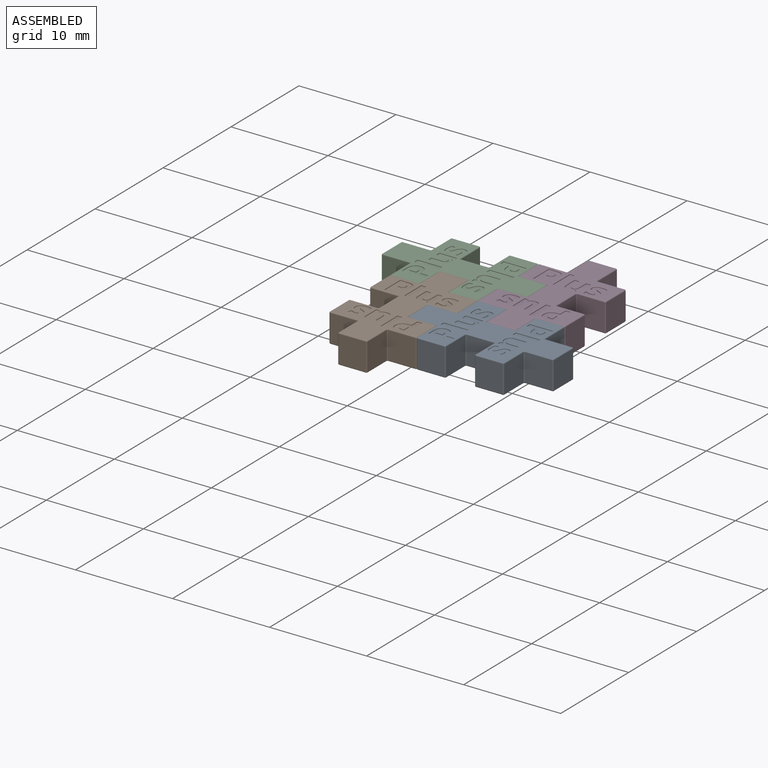
[diagram: assembled view]
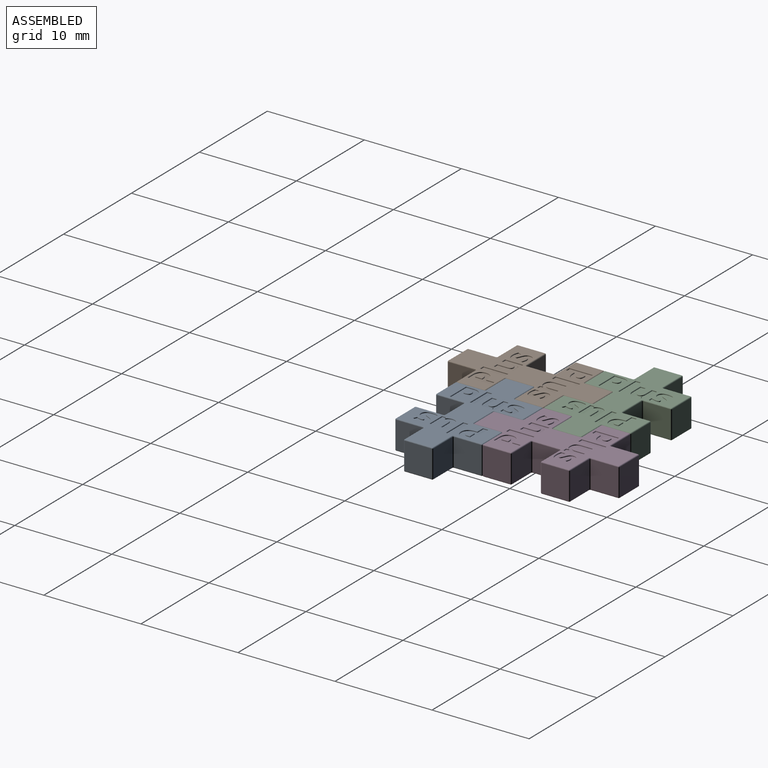
[diagram: assembled view, second angle]
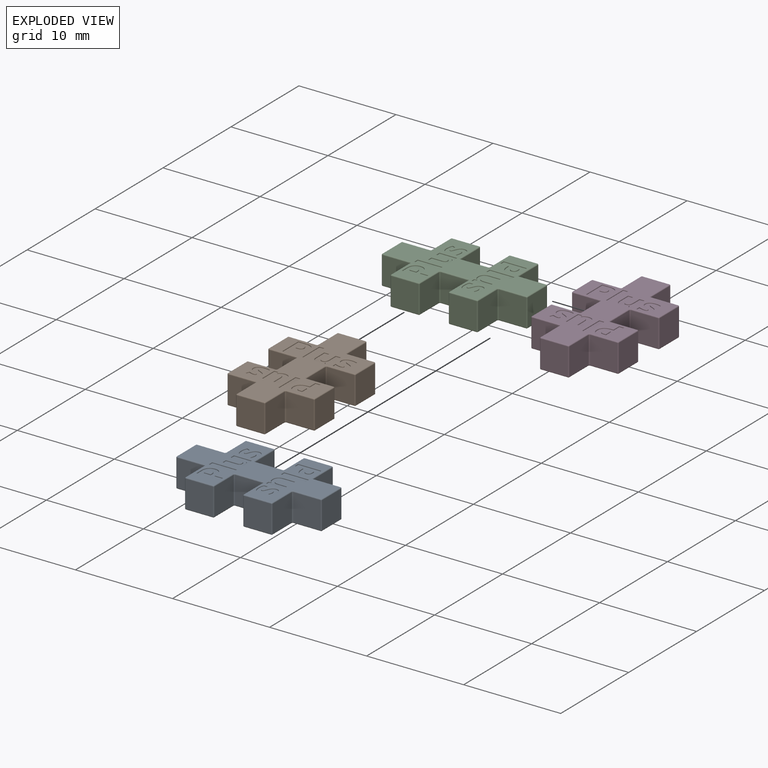
[diagram: exploded view]
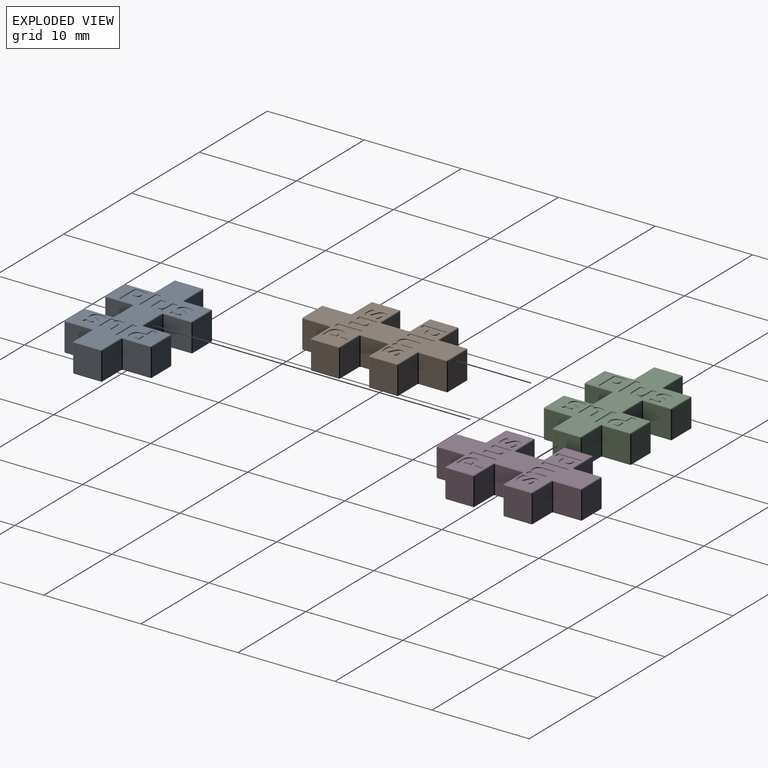
[diagram: exploded view, second angle]
ASSEMBLY  parts=4 mates=3
PART A: 383 faces, bbox 15x9x3 mm
  f0: plane 14.8x8.8mm, normal (0,0,1), area 56.6mm2, adj f1,f96,f97,f98,f99,f100,f101,f102
  f1: torus R=0.2mm, axis (0,0,1), area 0mm2, adj f0,f2,f96,f122
  f2: cylinder r=0.1mm len=2.8mm, axis (0,0,1), area 0.4mm2, adj f1,f3,f94,f95
  f3: plane 2.8x2.8mm, normal (0,1,0), area 7.8mm2, adj f2,f4,f92,f96
  f4: cylinder r=0.1mm len=2.8mm, axis (-1,0,0), area 0.4mm2, adj f3,f5,f91,f94
  f5: plane 14.8x8.8mm, normal (0,0,-1), area 75.1mm2, adj f4,f6,f65,f66,f67,f68,f69,f70
  f6: cylinder r=0.1mm len=2.8mm, axis (-1,0,0), area 0.4mm2, adj f5,f7,f64,f90
  f7: plane 2.8x2.8mm, normal (0,1,0), area 7.8mm2, adj f6,f8,f43,f112
  f8: cylinder r=0.1mm len=2.8mm, axis (0,0,-1), area 0.4mm2, adj f7,f9,f42,f64
  f9: plane 2.8x2.8mm, normal (-1,0,0), area 7.8mm2, adj f8,f10,f65,f111
  f10: cylinder r=0.1mm len=2.8mm, axis (0,0,-1), area 0.4mm2, adj f9,f11,f40,f41
  f11: plane 2.8x2.8mm, normal (0,-1,0), area 7.8mm2, adj f10,f12,f66,f110
  f12: cylinder r=0.1mm len=2.8mm, axis (0,0,1), area 0.4mm2, adj f11,f13,f67,f109
  f13: plane 2.8x2.8mm, normal (-1,0,0), area 7.8mm2, adj f12,f14,f68,f108
  f14: cylinder r=0.1mm len=2.8mm, axis (0,0,-1), area 0.4mm2, adj f13,f15,f16,f39
  f15: sphere r=0.1mm, area 0mm2, adj f14,f107,f108
  f16: plane 2.8x2.8mm, normal (0,-1,0), area 7.8mm2, adj f14,f17,f69,f107
  f17: cylinder r=0.1mm len=2.8mm, axis (0,0,-1), area 0.4mm2, adj f16,f18,f19,f38
  f18: sphere r=0.1mm, area 0mm2, adj f17,f106,f107
  f19: plane 2.8x2.8mm, normal (1,0,0), area 7.8mm2, adj f17,f20,f70,f106
  f20: cylinder r=0.1mm len=2.8mm, axis (0,0,1), area 0.4mm2, adj f19,f21,f71,f105
  f21: plane 2.8x2.8mm, normal (0,-1,0), area 7.8mm2, adj f20,f22,f72,f104
  f22: cylinder r=0.1mm len=2.8mm, axis (0,0,1), area 0.4mm2, adj f21,f23,f73,f103
  f23: plane 2.8x2.8mm, normal (-1,0,0), area 7.8mm2, adj f22,f24,f74,f102
  f24: cylinder r=0.1mm len=2.8mm, axis (0,0,-1), area 0.4mm2, adj f23,f25,f26,f37
  f25: sphere r=0.1mm, area 0mm2, adj f24,f101,f102
  f26: plane 2.8x2.8mm, normal (0,-1,0), area 7.8mm2, adj f24,f27,f75,f101
  f27: cylinder r=0.1mm len=2.8mm, axis (0,0,-1), area 0.4mm2, adj f26,f28,f29,f36
  f28: sphere r=0.1mm, area 0mm2, adj f27,f100,f101
  f29: plane 2.8x2.8mm, normal (1,0,0), area 7.8mm2, adj f27,f30,f76,f100
  f30: cylinder r=0.1mm len=2.8mm, axis (0,0,1), area 0.4mm2, adj f29,f31,f77,f99
  f31: plane 2.8x2.8mm, normal (0,-1,0), area 7.8mm2, adj f30,f32,f78,f98
  f32: cylinder r=0.1mm len=2.8mm, axis (0,0,-1), area 0.4mm2, adj f31,f33,f34,f35
  f33: sphere r=0.1mm, area 0mm2, adj f32,f97,f98
  f34: plane 2.8x2.8mm, normal (1,0,0), area 7.8mm2, adj f32,f79,f92,f97
  f35: sphere r=0.1mm, area 0mm2, adj f32,f78,f79
  f36: sphere r=0.1mm, area 0mm2, adj f27,f75,f76
  f37: sphere r=0.1mm, area 0mm2, adj f24,f74,f75
  f38: sphere r=0.1mm, area 0mm2, adj f17,f69,f70
  f39: sphere r=0.1mm, area 0mm2, adj f14,f68,f69
  f40: sphere r=0.1mm, area 0mm2, adj f10,f65,f66
  f41: sphere r=0.1mm, area 0mm2, adj f10,f110,f111
  f42: sphere r=0.1mm, area 0mm2, adj f8,f111,f112
  f43: cylinder r=0.1mm len=2.8mm, axis (0,0,1), area 0.4mm2, adj f7,f44,f90,f113
  f44: plane 2.8x2.8mm, normal (-1,0,0), area 7.8mm2, adj f43,f45,f89,f114
  f45: cylinder r=0.1mm len=2.8mm, axis (0,0,-1), area 0.4mm2, adj f44,f46,f47,f63
  f46: sphere r=0.1mm, area 0mm2, adj f45,f88,f89
  f47: plane 2.8x2.8mm, normal (0,1,0), area 7.8mm2, adj f45,f48,f88,f115
  f48: cylinder r=0.1mm len=2.8mm, axis (0,0,-1), area 0.4mm2, adj f47,f49,f50,f62
  f49: sphere r=0.1mm, area 0mm2, adj f48,f86,f88
  f50: plane 2.8x2.8mm, normal (1,0,0), area 7.8mm2, adj f48,f51,f86,f116
  f51: cylinder r=0.1mm len=2.8mm, axis (0,0,1), area 0.4mm2, adj f50,f52,f85,f117
  f52: plane 2.8x2.8mm, normal (0,1,0), area 7.8mm2, adj f51,f53,f84,f118
  f53: cylinder r=0.1mm len=2.8mm, axis (0,0,1), area 0.4mm2, adj f52,f54,f83,f119
  f54: plane 2.8x2.8mm, normal (-1,0,0), area 7.8mm2, adj f53,f55,f82,f120
  f55: cylinder r=0.1mm len=2.8mm, axis (0,0,-1), area 0.4mm2, adj f54,f56,f57,f61
  f56: sphere r=0.1mm, area 0mm2, adj f55,f81,f82
  f57: plane 2.8x2.8mm, normal (0,1,0), area 7.8mm2, adj f55,f58,f81,f121
  f58: cylinder r=0.1mm len=2.8mm, axis (0,0,-1), area 0.4mm2, adj f57,f59,f60,f95
  f59: sphere r=0.1mm, area 0mm2, adj f58,f80,f81
  f60: sphere r=0.1mm, area 0mm2, adj f58,f121,f122
  f61: sphere r=0.1mm, area 0mm2, adj f55,f120,f121
  f62: sphere r=0.1mm, area 0mm2, adj f48,f115,f116
  f63: sphere r=0.1mm, area 0mm2, adj f45,f114,f115
  f64: sphere r=0.1mm, area 0mm2, adj f6,f8,f65
  f65: cylinder r=0.1mm len=2.8mm, axis (0,-1,0), area 0.4mm2, adj f5,f9,f40,f64
  f66: cylinder r=0.1mm len=2.8mm, axis (1,0,0), area 0.4mm2, adj f5,f11,f40,f67
  f67: torus R=0.2mm, axis (0,0,1), area 0mm2, adj f5,f12,f66,f68
  f68: cylinder r=0.1mm len=2.8mm, axis (0,-1,0), area 0.4mm2, adj f5,f13,f39,f67
  f69: cylinder r=0.1mm len=2.8mm, axis (1,0,0), area 0.4mm2, adj f5,f16,f38,f39
  f70: cylinder r=0.1mm len=2.8mm, axis (0,1,0), area 0.4mm2, adj f5,f19,f38,f71
  f71: torus R=0.2mm, axis (0,0,1), area 0mm2, adj f5,f20,f70,f72
  f72: cylinder r=0.1mm len=2.8mm, axis (1,0,0), area 0.4mm2, adj f5,f21,f71,f73
  f73: torus R=0.2mm, axis (0,0,1), area 0mm2, adj f5,f22,f72,f74
  f74: cylinder r=0.1mm len=2.8mm, axis (0,-1,0), area 0.4mm2, adj f5,f23,f37,f73
  f75: cylinder r=0.1mm len=2.8mm, axis (1,0,0), area 0.4mm2, adj f5,f26,f36,f37
  f76: cylinder r=0.1mm len=2.8mm, axis (0,1,0), area 0.4mm2, adj f5,f29,f36,f77
  f77: torus R=0.2mm, axis (0,0,1), area 0mm2, adj f5,f30,f76,f78
  f78: cylinder r=0.1mm len=2.8mm, axis (1,0,0), area 0.4mm2, adj f5,f31,f35,f77
  f79: cylinder r=0.1mm len=2.8mm, axis (0,1,0), area 0.4mm2, adj f5,f34,f35,f91
  f80: cylinder r=0.1mm len=2.8mm, axis (0,1,0), area 0.4mm2, adj f5,f59,f94,f95
  f81: cylinder r=0.1mm len=2.8mm, axis (-1,0,0), area 0.4mm2, adj f5,f56,f57,f59
  f82: cylinder r=0.1mm len=2.8mm, axis (0,-1,0), area 0.4mm2, adj f5,f54,f56,f83
  f83: torus R=0.2mm, axis (0,0,1), area 0mm2, adj f5,f53,f82,f84
  f84: cylinder r=0.1mm len=2.8mm, axis (-1,0,0), area 0.4mm2, adj f5,f52,f83,f85
  f85: torus R=0.2mm, axis (0,0,1), area 0mm2, adj f5,f51,f84,f86
  f86: cylinder r=0.1mm len=2.8mm, axis (0,1,0), area 0.4mm2, adj f5,f49,f50,f85,f87
  f87: sphere r=0.1mm, area 0mm2, adj f86,f88
  f88: cylinder r=0.1mm len=2.8mm, axis (-1,0,0), area 0.4mm2, adj f5,f46,f47,f49,f87
  f89: cylinder r=0.1mm len=2.8mm, axis (0,-1,0), area 0.4mm2, adj f5,f44,f46,f90
  f90: torus R=0.2mm, axis (0,0,1), area 0mm2, adj f5,f6,f43,f89
  f91: sphere r=0.1mm, area 0mm2, adj f4,f79,f92
  f92: cylinder r=0.1mm len=2.8mm, axis (0,0,-1), area 0.4mm2, adj f3,f34,f91,f93
  f93: sphere r=0.1mm, area 0mm2, adj f92,f96,f97
  f94: torus R=0.2mm, axis (0,0,1), area 0mm2, adj f2,f4,f5,f80
  f95: plane 2.8x2.8mm, normal (1,0,0), area 7.8mm2, adj f2,f58,f80,f122
  f96: cylinder r=0.1mm len=2.8mm, axis (1,0,0), area 0.4mm2, adj f0,f1,f3,f93
  f97: cylinder r=0.1mm len=2.8mm, axis (0,-1,0), area 0.4mm2, adj f0,f33,f34,f93
  f98: cylinder r=0.1mm len=2.8mm, axis (-1,0,0), area 0.4mm2, adj f0,f31,f33,f99
  f99: torus R=0.2mm, axis (0,0,1), area 0mm2, adj f0,f30,f98,f100
  f100: cylinder r=0.1mm len=2.8mm, axis (0,-1,0), area 0.4mm2, adj f0,f28,f29,f99
  f101: cylinder r=0.1mm len=2.8mm, axis (-1,0,0), area 0.4mm2, adj f0,f25,f26,f28
  f102: cylinder r=0.1mm len=2.8mm, axis (0,1,0), area 0.4mm2, adj f0,f23,f25,f103
  f103: torus R=0.2mm, axis (0,0,1), area 0mm2, adj f0,f22,f102,f104
  f104: cylinder r=0.1mm len=2.8mm, axis (-1,0,0), area 0.4mm2, adj f0,f21,f103,f105
  f105: torus R=0.2mm, axis (0,0,1), area 0mm2, adj f0,f20,f104,f106
  f106: cylinder r=0.1mm len=2.8mm, axis (0,-1,0), area 0.4mm2, adj f0,f18,f19,f105
  f107: cylinder r=0.1mm len=2.8mm, axis (-1,0,0), area 0.4mm2, adj f0,f15,f16,f18
  f108: cylinder r=0.1mm len=2.8mm, axis (0,1,0), area 0.4mm2, adj f0,f13,f15,f109
  f109: torus R=0.2mm, axis (0,0,1), area 0mm2, adj f0,f12,f108,f110
  f110: cylinder r=0.1mm len=2.8mm, axis (-1,0,0), area 0.4mm2, adj f0,f11,f41,f109
  f111: cylinder r=0.1mm len=2.8mm, axis (0,1,0), area 0.4mm2, adj f0,f9,f41,f42
  f112: cylinder r=0.1mm len=2.8mm, axis (1,0,0), area 0.4mm2, adj f0,f7,f42,f113
  f113: torus R=0.2mm, axis (0,0,1), area 0mm2, adj f0,f43,f112,f114
  f114: cylinder r=0.1mm len=2.8mm, axis (0,1,0), area 0.4mm2, adj f0,f44,f63,f113
  f115: cylinder r=0.1mm len=2.8mm, axis (1,0,0), area 0.4mm2, adj f0,f47,f62,f63
  f116: cylinder r=0.1mm len=2.8mm, axis (0,-1,0), area 0.4mm2, adj f0,f50,f62,f117
  f117: torus R=0.2mm, axis (0,0,1), area 0mm2, adj f0,f51,f116,f118
  f118: cylinder r=0.1mm len=2.8mm, axis (1,0,0), area 0.4mm2, adj f0,f52,f117,f119
  f119: torus R=0.2mm, axis (0,0,1), area 0mm2, adj f0,f53,f118,f120
  f120: cylinder r=0.1mm len=2.8mm, axis (0,1,0), area 0.4mm2, adj f0,f54,f61,f119
  f121: cylinder r=0.1mm len=2.8mm, axis (1,0,0), area 0.4mm2, adj f0,f57,f60,f61
  f122: cylinder r=0.1mm len=2.8mm, axis (0,-1,0), area 0.4mm2, adj f0,f1,f60,f95
  f123: cylinder r=0.05mm len=0.6mm, axis (0,-1,0), area 0mm2, adj f0,f124,f129,f131
  f124: plane 0.5x0.05mm, normal (1,0,0), area 0mm2, adj f123,f125,f127,f128
  f125: plane 2.53x0.5mm, normal (0,0,1), area 1.3mm2, adj f124,f126,f127,f128
  f126: plane 0.5x0.05mm, normal (-1,0,0), area 0mm2, adj f125,f127,f128,f130
  f127: plane 2.53x0.05mm, normal (0,1,0), area 0.1mm2, adj f124,f125,f126,f129
  f128: plane 2.53x0.05mm, normal (0,-1,0), area 0.1mm2, adj f124,f125,f126,f131
  f129: cylinder r=0.05mm len=2.63mm, axis (1,0,0), area 0.2mm2, adj f0,f123,f127,f130
  f130: cylinder r=0.05mm len=0.6mm, axis (0,1,0), area 0mm2, adj f0,f126,f129,f131
  f131: cylinder r=0.05mm len=2.63mm, axis (-1,0,0), area 0.2mm2, adj f0,f123,f128,f130
  f132: bspline ~0.3x0.14mm, area 0mm2, adj f0,f133,f151,f165
  f133: extruded ~0.22x0.1mm, area 0mm2, adj f132,f134,f149,f150
  f134: extruded ~0.3x0.14mm, area 0mm2, adj f133,f135,f150,f165
  f135: extruded ~0.46x0.09mm, area 0mm2, adj f134,f136,f150,f164
  f136: plane 0.86x0.05mm, normal (0,1,0), area 0mm2, adj f135,f137,f150,f163
  f137: plane 0.5x0.05mm, normal (1,0,0), area 0mm2, adj f136,f138,f150,f162
  f138: plane 1.82x0.05mm, normal (0,-1,0), area 0.1mm2, adj f137,f139,f150,f161
  f139: plane 0.38x0.05mm, normal (-1,0,0), area 0mm2, adj f138,f140,f150,f160
  f140: plane 0.23x0.07mm, normal (-0.28,0.96,0), area 0mm2, adj f139,f141,f150,f159
  f141: plane 0.09x0.03mm, normal (-1,0,0), area 0mm2, adj f140,f142,f150,f158,f159
  f142: extruded ~0.23x0.2mm, area 0mm2, adj f141,f143,f150,f158
  f143: extruded ~0.33x0.07mm, area 0mm2, adj f142,f144,f150,f157
  f144: extruded ~0.48x0.17mm, area 0mm2, adj f143,f145,f150,f156
  f145: extruded ~0.49x0.16mm, area 0mm2, adj f144,f146,f150,f155
  f146: plane 1.19x0.05mm, normal (0,1,0), area 0.1mm2, adj f145,f147,f150,f154
  f147: plane 0.5x0.05mm, normal (1,0,0), area 0mm2, adj f146,f148,f150,f153
  f148: plane 1.06x0.05mm, normal (0,-1,0), area 0.1mm2, adj f147,f149,f150,f152
  f149: extruded ~0.3x0.07mm, area 0mm2, adj f133,f148,f150,f151
  f150: plane 1.85x1.68mm, normal (0,0,1), area 2mm2, adj f133,f134,f135,f136,f137,f138,f139,f140
  f151: bspline ~0.37x0.15mm, area 0mm2, adj f0,f132,f149,f152
  f152: cylinder r=0.05mm len=1.11mm, axis (-1,0,0), area 0.1mm2, adj f0,f148,f151,f153
  f153: cylinder r=0.05mm len=0.6mm, axis (0,-1,0), area 0mm2, adj f0,f147,f152,f154
  f154: cylinder r=0.05mm len=1.24mm, axis (1,0,0), area 0.1mm2, adj f0,f146,f153,f155
  f155: bspline ~0.75x0.23mm, area 0mm2, adj f0,f145,f154,f156
  f156: bspline ~0.63x0.29mm, area 0mm2, adj f0,f144,f155,f157
  f157: bspline ~0.44x0.13mm, area 0mm2, adj f0,f143,f156,f158
  f158: bspline ~0.38x0.34mm, area 0mm2, adj f0,f141,f142,f157,f159
  f159: cylinder r=0.05mm len=0.29mm, axis (0.96,0.28,0), area 0mm2, adj f0,f140,f141,f158,f160
  f160: cylinder r=0.05mm len=0.47mm, axis (0,1,0), area 0mm2, adj f0,f139,f159,f161
  f161: cylinder r=0.05mm len=1.92mm, axis (-1,0,0), area 0.1mm2, adj f0,f138,f160,f162
  f162: cylinder r=0.05mm len=0.6mm, axis (0,-1,0), area 0mm2, adj f0,f137,f161,f163
  f163: cylinder r=0.05mm len=0.91mm, axis (1,0,0), area 0.1mm2, adj f0,f136,f162,f164
  f164: bspline ~0.59x0.14mm, area 0mm2, adj f0,f135,f163,f165
  f165: bspline ~0.37x0.24mm, area 0mm2, adj f0,f132,f134,f164
  f166: bspline ~0.26x0.22mm, area 0mm2, adj f0,f167,f194,f218
  f167: extruded ~0.17x0.14mm, area 0mm2, adj f166,f168,f192,f193
  f168: extruded ~0.24x0.05mm, area 0mm2, adj f167,f169,f193,f218
  f169: extruded ~0.38x0.19mm, area 0mm2, adj f168,f170,f193,f217
  f170: extruded ~0.53x0.13mm, area 0mm2, adj f169,f171,f193,f216
  f171: extruded ~0.64x0.14mm, area 0mm2, adj f170,f172,f193,f215
  f172: plane 0.36x0.15mm, normal (-0.39,-0.92,0), area 0mm2, adj f171,f173,f193,f214
  f173: extruded ~0.26x0.1mm, area 0mm2, adj f172,f174,f193,f213
  f174: extruded ~0.24x0.05mm, area 0mm2, adj f173,f175,f193,f212
  f175: extruded ~0.22x0.12mm, area 0mm2, adj f174,f176,f193,f211
  f176: extruded ~0.12x0.07mm, area 0mm2, adj f175,f177,f193,f210
  f177: extruded ~0.31x0.14mm, area 0mm2, adj f176,f178,f193,f209
  f178: extruded ~0.31x0.16mm, area 0mm2, adj f177,f179,f193,f208
  f179: extruded ~0.17x0.15mm, area 0mm2, adj f178,f180,f193,f207
  f180: extruded ~0.23x0.05mm, area 0mm2, adj f179,f181,f193,f206
  f181: extruded ~0.43x0.19mm, area 0mm2, adj f180,f182,f193,f205
  f182: extruded ~0.58x0.15mm, area 0mm2, adj f181,f183,f193,f204
  f183: extruded ~0.34x0.05mm, area 0mm2, adj f182,f184,f193,f203
  f184: extruded ~0.26x0.08mm, area 0mm2, adj f183,f185,f193,f202
  f185: plane 0.41x0.05mm, normal (0,1,0), area 0mm2, adj f184,f186,f193,f201
  f186: extruded ~0.31x0.11mm, area 0mm2, adj f185,f187,f193,f200
  f187: extruded ~0.31x0.05mm, area 0mm2, adj f186,f188,f193,f199
  f188: extruded ~0.27x0.16mm, area 0mm2, adj f187,f189,f193,f198
  f189: extruded ~0.1x0.05mm, area 0mm2, adj f188,f190,f193,f197
  f190: extruded ~0.12x0.08mm, area 0mm2, adj f189,f191,f193,f196
  f191: extruded ~0.23x0.11mm, area 0mm2, adj f190,f192,f193,f195
  f192: extruded ~0.31x0.16mm, area 0mm2, adj f167,f191,f193,f194
  f193: plane 1.89x1.38mm, normal (0,0,1), area 1.7mm2, adj f167,f168,f169,f170,f171,f172,f173,f174
  f194: bspline ~0.42x0.26mm, area 0mm2, adj f0,f166,f192,f195
  f195: bspline ~0.32x0.18mm, area 0mm2, adj f0,f191,f194,f196
  f196: bspline ~0.18x0.14mm, area 0mm2, adj f0,f190,f195,f197
  f197: bspline ~0.12x0.09mm, area 0mm2, adj f0,f189,f196,f198
  f198: bspline ~0.3x0.24mm, area 0mm2, adj f0,f188,f197,f199
  f199: bspline ~0.38x0.1mm, area 0mm2, adj f0,f187,f198,f200
  f200: bspline ~0.66x0.3mm, area 0mm2, adj f0,f186,f199,f201
  f201: cylinder r=0.05mm len=0.52mm, axis (1,0,0), area 0mm2, adj f0,f185,f200,f202
  f202: bspline ~0.54x0.22mm, area 0mm2, adj f0,f184,f201,f203
  f203: bspline ~0.43x0.09mm, area 0mm2, adj f0,f183,f202,f204
  f204: bspline ~0.78x0.22mm, area 0mm2, adj f0,f182,f203,f205
  f205: bspline ~0.59x0.36mm, area 0mm2, adj f0,f181,f204,f206
  f206: bspline ~0.31x0.1mm, area 0mm2, adj f0,f180,f205,f207
  f207: bspline ~0.26x0.22mm, area 0mm2, adj f0,f179,f206,f208
  f208: bspline ~0.48x0.29mm, area 0mm2, adj f0,f178,f207,f209
  f209: bspline ~0.42x0.23mm, area 0mm2, adj f0,f177,f208,f210
  f210: bspline ~0.15x0.14mm, area 0mm2, adj f0,f176,f209,f211
  f211: bspline ~0.24x0.17mm, area 0mm2, adj f0,f175,f210,f212
  f212: bspline ~0.3x0.09mm, area 0mm2, adj f0,f174,f211,f213
  f213: bspline ~0.55x0.25mm, area 0mm2, adj f0,f173,f212,f214
  f214: cylinder r=0.05mm len=0.47mm, axis (-0.92,0.39,0), area 0mm2, adj f0,f172,f213,f215
  f215: bspline ~1.26x0.4mm, area 0.1mm2, adj f0,f171,f214,f216
  f216: bspline ~0.71x0.2mm, area 0mm2, adj f0,f170,f215,f217
  f217: bspline ~0.51x0.33mm, area 0mm2, adj f0,f169,f216,f218
  f218: bspline ~0.32x0.1mm, area 0mm2, adj f0,f166,f168,f217
  f219: cylinder r=0.05mm len=0.6mm, axis (0,1,0), area 0mm2, adj f0,f220,f225,f227
  f220: plane 0.5x0.05mm, normal (-1,0,0), area 0mm2, adj f219,f221,f223,f224
  f221: plane 2.53x0.5mm, normal (0,0,1), area 1.3mm2, adj f220,f222,f223,f224
  f222: plane 0.5x0.05mm, normal (1,0,0), area 0mm2, adj f221,f223,f224,f226
  f223: plane 2.53x0.05mm, normal (0,-1,0), area 0.1mm2, adj f220,f221,f222,f225
  f224: plane 2.53x0.05mm, normal (0,1,0), area 0.1mm2, adj f220,f221,f222,f227
  f225: cylinder r=0.05mm len=2.63mm, axis (-1,0,0), area 0.2mm2, adj f0,f219,f223,f226
  f226: cylinder r=0.05mm len=0.6mm, axis (0,-1,0), area 0mm2, adj f0,f222,f225,f227
  f227: cylinder r=0.05mm len=2.63mm, axis (1,0,0), area 0.2mm2, adj f0,f219,f224,f226
  f228: bspline ~0.3x0.14mm, area 0mm2, adj f0,f229,f247,f261
  f229: extruded ~0.22x0.1mm, area 0mm2, adj f228,f230,f245,f246
  f230: extruded ~0.3x0.14mm, area 0mm2, adj f229,f231,f246,f261
  f231: extruded ~0.46x0.09mm, area 0mm2, adj f230,f232,f246,f260
  f232: plane 0.86x0.05mm, normal (0,-1,0), area 0mm2, adj f231,f233,f246,f259
  f233: plane 0.5x0.05mm, normal (-1,0,0), area 0mm2, adj f232,f234,f246,f258
  f234: plane 1.82x0.05mm, normal (0,1,0), area 0.1mm2, adj f233,f235,f246,f257
  f235: plane 0.38x0.05mm, normal (1,0,0), area 0mm2, adj f234,f236,f246,f256
  f236: plane 0.23x0.07mm, normal (0.28,-0.96,0), area 0mm2, adj f235,f237,f246,f255
  f237: plane 0.09x0.03mm, normal (1,0,0), area 0mm2, adj f236,f238,f246,f254,f255
  f238: extruded ~0.23x0.2mm, area 0mm2, adj f237,f239,f246,f254
  f239: extruded ~0.33x0.07mm, area 0mm2, adj f238,f240,f246,f253
  f240: extruded ~0.48x0.17mm, area 0mm2, adj f239,f241,f246,f252
  f241: extruded ~0.49x0.16mm, area 0mm2, adj f240,f242,f246,f251
  f242: plane 1.19x0.05mm, normal (0,-1,0), area 0.1mm2, adj f241,f243,f246,f250
  f243: plane 0.5x0.05mm, normal (-1,0,0), area 0mm2, adj f242,f244,f246,f249
  f244: plane 1.06x0.05mm, normal (0,1,0), area 0.1mm2, adj f243,f245,f246,f248
  f245: extruded ~0.3x0.07mm, area 0mm2, adj f229,f244,f246,f247
  f246: plane 1.85x1.68mm, normal (0,0,1), area 2mm2, adj f229,f230,f231,f232,f233,f234,f235,f236
  f247: bspline ~0.37x0.15mm, area 0mm2, adj f0,f228,f245,f248
  f248: cylinder r=0.05mm len=1.11mm, axis (1,0,0), area 0.1mm2, adj f0,f244,f247,f249
  f249: cylinder r=0.05mm len=0.6mm, axis (0,1,0), area 0mm2, adj f0,f243,f248,f250
  f250: cylinder r=0.05mm len=1.24mm, axis (-1,0,0), area 0.1mm2, adj f0,f242,f249,f251
  f251: bspline ~0.75x0.23mm, area 0mm2, adj f0,f241,f250,f252
  f252: bspline ~0.63x0.29mm, area 0mm2, adj f0,f240,f251,f253
  f253: bspline ~0.44x0.13mm, area 0mm2, adj f0,f239,f252,f254
  f254: bspline ~0.38x0.34mm, area 0mm2, adj f0,f237,f238,f253,f255
  f255: cylinder r=0.05mm len=0.29mm, axis (-0.96,-0.28,0), area 0mm2, adj f0,f236,f237,f254,f256
  f256: cylinder r=0.05mm len=0.47mm, axis (0,-1,0), area 0mm2, adj f0,f235,f255,f257
  f257: cylinder r=0.05mm len=1.92mm, axis (1,0,0), area 0.1mm2, adj f0,f234,f256,f258
  f258: cylinder r=0.05mm len=0.6mm, axis (0,1,0), area 0mm2, adj f0,f233,f257,f259
  f259: cylinder r=0.05mm len=0.91mm, axis (-1,0,0), area 0.1mm2, adj f0,f232,f258,f260
  f260: bspline ~0.59x0.14mm, area 0mm2, adj f0,f231,f259,f261
  f261: bspline ~0.37x0.24mm, area 0mm2, adj f0,f228,f230,f260
  f262: bspline ~1.26x0.4mm, area 0.1mm2, adj f0,f263,f290,f314
  f263: extruded ~0.64x0.14mm, area 0mm2, adj f262,f264,f288,f289
  f264: plane 0.36x0.15mm, normal (0.39,0.92,0), area 0mm2, adj f263,f265,f289,f314
  f265: extruded ~0.26x0.1mm, area 0mm2, adj f264,f266,f289,f313
  f266: extruded ~0.24x0.05mm, area 0mm2, adj f265,f267,f289,f312
  f267: extruded ~0.22x0.12mm, area 0mm2, adj f266,f268,f289,f311
  f268: extruded ~0.12x0.07mm, area 0mm2, adj f267,f269,f289,f310
  f269: extruded ~0.31x0.14mm, area 0mm2, adj f268,f270,f289,f309
  f270: extruded ~0.31x0.16mm, area 0mm2, adj f269,f271,f289,f308
  f271: extruded ~0.17x0.15mm, area 0mm2, adj f270,f272,f289,f307
  f272: extruded ~0.23x0.05mm, area 0mm2, adj f271,f273,f289,f306
  f273: extruded ~0.43x0.19mm, area 0mm2, adj f272,f274,f289,f305
  f274: extruded ~0.58x0.15mm, area 0mm2, adj f273,f275,f289,f304
  f275: extruded ~0.34x0.05mm, area 0mm2, adj f274,f276,f289,f303
  f276: extruded ~0.26x0.08mm, area 0mm2, adj f275,f277,f289,f302
  f277: plane 0.41x0.05mm, normal (0,-1,0), area 0mm2, adj f276,f278,f289,f301
  f278: extruded ~0.31x0.11mm, area 0mm2, adj f277,f279,f289,f300
  f279: extruded ~0.31x0.05mm, area 0mm2, adj f278,f280,f289,f299
  f280: extruded ~0.27x0.16mm, area 0mm2, adj f279,f281,f289,f298
  f281: extruded ~0.1x0.05mm, area 0mm2, adj f280,f282,f289,f297
  f282: extruded ~0.12x0.08mm, area 0mm2, adj f281,f283,f289,f296
  f283: extruded ~0.23x0.11mm, area 0mm2, adj f282,f284,f289,f295
  f284: extruded ~0.31x0.16mm, area 0mm2, adj f283,f285,f289,f294
  f285: extruded ~0.17x0.14mm, area 0mm2, adj f284,f286,f289,f293
  f286: extruded ~0.24x0.05mm, area 0mm2, adj f285,f287,f289,f292
  f287: extruded ~0.38x0.19mm, area 0mm2, adj f286,f288,f289,f291
  f288: extruded ~0.53x0.13mm, area 0mm2, adj f263,f287,f289,f290
  f289: plane 1.89x1.38mm, normal (0,0,1), area 1.7mm2, adj f263,f264,f265,f266,f267,f268,f269,f270
  f290: bspline ~0.71x0.2mm, area 0mm2, adj f0,f262,f288,f291
  f291: bspline ~0.51x0.33mm, area 0mm2, adj f0,f287,f290,f292
  f292: bspline ~0.32x0.1mm, area 0mm2, adj f0,f286,f291,f293
  f293: bspline ~0.26x0.22mm, area 0mm2, adj f0,f285,f292,f294
  f294: bspline ~0.42x0.26mm, area 0mm2, adj f0,f284,f293,f295
  f295: bspline ~0.32x0.18mm, area 0mm2, adj f0,f283,f294,f296
  f296: bspline ~0.18x0.14mm, area 0mm2, adj f0,f282,f295,f297
  f297: bspline ~0.12x0.09mm, area 0mm2, adj f0,f281,f296,f298
  f298: bspline ~0.3x0.24mm, area 0mm2, adj f0,f280,f297,f299
  f299: bspline ~0.38x0.1mm, area 0mm2, adj f0,f279,f298,f300
  f300: bspline ~0.66x0.3mm, area 0mm2, adj f0,f278,f299,f301
  f301: cylinder r=0.05mm len=0.52mm, axis (-1,0,0), area 0mm2, adj f0,f277,f300,f302
  f302: bspline ~0.54x0.22mm, area 0mm2, adj f0,f276,f301,f303
  f303: bspline ~0.43x0.09mm, area 0mm2, adj f0,f275,f302,f304
  f304: bspline ~0.78x0.22mm, area 0mm2, adj f0,f274,f303,f305
  f305: bspline ~0.59x0.36mm, area 0mm2, adj f0,f273,f304,f306
  f306: bspline ~0.31x0.1mm, area 0mm2, adj f0,f272,f305,f307
  f307: bspline ~0.26x0.22mm, area 0mm2, adj f0,f271,f306,f308
  f308: bspline ~0.42x0.26mm, area 0mm2, adj f0,f270,f307,f309
  f309: bspline ~0.42x0.23mm, area 0mm2, adj f0,f269,f308,f310
  f310: bspline ~0.15x0.14mm, area 0mm2, adj f0,f268,f309,f311
  f311: bspline ~0.24x0.17mm, area 0mm2, adj f0,f267,f310,f312
  f312: bspline ~0.3x0.09mm, area 0mm2, adj f0,f266,f311,f313
  f313: bspline ~0.55x0.25mm, area 0mm2, adj f0,f265,f312,f314
  f314: cylinder r=0.05mm len=0.47mm, axis (0.92,-0.39,0), area 0mm2, adj f0,f262,f264,f313
  f315: cylinder r=0.05mm len=0.9mm, axis (-1,0,0), area 0.1mm2, adj f0,f316,f341,f348
  f316: plane 0.85x0.05mm, normal (0,-1,0), area 0mm2, adj f315,f317,f339,f340
  f317: plane 2.38x1.64mm, normal (0,0,1), area 2.3mm2, adj f316,f318,f319,f320,f321,f322,f323,f324
  f318: extruded ~0.68x0.2mm, area 0mm2, adj f317,f323,f339,f342
  f319: plane 2.38x0.05mm, normal (0,1,0), area 0.1mm2, adj f317,f320,f340,f347
  f320: plane 0.76x0.05mm, normal (1,0,0), area 0mm2, adj f317,f319,f321,f346
  f321: extruded ~0.66x0.19mm, area 0mm2, adj f317,f320,f322,f345
  f322: extruded ~0.56x0.23mm, area 0mm2, adj f317,f321,f323,f344
  f323: extruded ~0.59x0.24mm, area 0mm2, adj f317,f318,f322,f343
  f324: extruded ~0.35x0.09mm, area 0mm2, adj f317,f325,f333,f338
  f325: bspline ~0.43x0.18mm, area 0mm2, adj f324,f326,f331,f332
  f326: cylinder r=0.05mm len=0.17mm, axis (0,-1,0), area 0mm2, adj f325,f327,f331,f338
  f327: cylinder r=0.05mm len=0.71mm, axis (-1,0,0), area 0.1mm2, adj f326,f328,f331,f337
  f328: cylinder r=0.05mm len=0.23mm, axis (0,1,0), area 0mm2, adj f327,f329,f331,f336
  f329: bspline ~0.45x0.13mm, area 0mm2, adj f328,f330,f331,f335
  f330: bspline ~0.31x0.16mm, area 0mm2, adj f329,f331,f332,f334
  f331: plane 0.61x0.53mm, normal (0,0,1), area 0.3mm2, adj f325,f326,f327,f328,f329,f330,f332
  f332: bspline ~0.37x0.16mm, area 0mm2, adj f325,f330,f331,f333
  f333: extruded ~0.27x0.12mm, area 0mm2, adj f317,f324,f332,f334
  f334: extruded ~0.26x0.1mm, area 0mm2, adj f317,f330,f333,f335
  f335: extruded ~0.3x0.08mm, area 0mm2, adj f317,f329,f334,f336
  f336: plane 0.23x0.05mm, normal (-1,0,0), area 0mm2, adj f317,f328,f335,f337
  f337: plane 0.71x0.05mm, normal (0,-1,0), area 0mm2, adj f317,f327,f336,f338
  f338: plane 0.17x0.05mm, normal (1,0,0), area 0mm2, adj f317,f324,f326,f337
  f339: plane 0.22x0.05mm, normal (-1,0,0), area 0mm2, adj f316,f317,f318,f341
  f340: plane 0.5x0.05mm, normal (-1,0,0), area 0mm2, adj f316,f317,f319,f348
  f341: cylinder r=0.05mm len=0.22mm, axis (0,1,0), area 0mm2, adj f0,f315,f339,f342
  f342: bspline ~0.9x0.28mm, area 0.1mm2, adj f0,f318,f341,f343
  f343: bspline ~0.75x0.37mm, area 0.1mm2, adj f0,f323,f342,f344
  f344: bspline ~0.81x0.29mm, area 0mm2, adj f0,f322,f343,f345
  f345: bspline ~0.85x0.33mm, area 0.1mm2, adj f0,f321,f344,f346
  f346: cylinder r=0.05mm len=0.81mm, axis (0,-1,0), area 0.1mm2, adj f0,f320,f345,f347
  f347: cylinder r=0.05mm len=2.48mm, axis (1,0,0), area 0.2mm2, adj f0,f319,f346,f348
  f348: cylinder r=0.05mm len=0.6mm, axis (0,1,0), area 0mm2, adj f0,f315,f340,f347
  f349: bspline ~0.85x0.33mm, area 0.1mm2, adj f0,f350,f375,f382
  f350: extruded ~0.66x0.19mm, area 0mm2, adj f349,f351,f358,f359
  f351: extruded ~0.56x0.23mm, area 0mm2, adj f350,f352,f359,f382
  f352: extruded ~0.59x0.24mm, area 0mm2, adj f351,f353,f359,f381
  f353: extruded ~0.68x0.2mm, area 0mm2, adj f352,f354,f359,f380
  f354: plane 0.22x0.05mm, normal (1,0,0), area 0mm2, adj f353,f355,f359,f379
  f355: plane 0.85x0.05mm, normal (0,1,0), area 0mm2, adj f354,f356,f359,f378
  f356: plane 0.5x0.05mm, normal (1,0,0), area 0mm2, adj f355,f357,f359,f377
  f357: plane 2.38x0.05mm, normal (0,-1,0), area 0.1mm2, adj f356,f358,f359,f376
  f358: plane 0.76x0.05mm, normal (-1,0,0), area 0mm2, adj f350,f357,f359,f375
  f359: plane 2.38x1.64mm, normal (0,0,1), area 2.3mm2, adj f350,f351,f352,f353,f354,f355,f356,f357
  f360: extruded ~0.35x0.09mm, area 0mm2, adj f359,f361,f369,f374
  f361: bspline ~0.43x0.18mm, area 0mm2, adj f360,f362,f367,f368
  f362: cylinder r=0.05mm len=0.17mm, axis (0,1,0), area 0mm2, adj f361,f363,f367,f374
  f363: cylinder r=0.05mm len=0.71mm, axis (1,0,0), area 0.1mm2, adj f362,f364,f367,f373
  f364: cylinder r=0.05mm len=0.23mm, axis (0,-1,0), area 0mm2, adj f363,f365,f367,f372
  f365: bspline ~0.45x0.13mm, area 0mm2, adj f364,f366,f367,f371
  f366: bspline ~0.31x0.16mm, area 0mm2, adj f365,f367,f368,f370
  f367: plane 0.61x0.53mm, normal (0,0,1), area 0.3mm2, adj f361,f362,f363,f364,f365,f366,f368
  f368: bspline ~0.37x0.16mm, area 0mm2, adj f361,f366,f367,f369
  f369: extruded ~0.27x0.12mm, area 0mm2, adj f359,f360,f368,f370
  f370: extruded ~0.26x0.1mm, area 0mm2, adj f359,f366,f369,f371
  f371: extruded ~0.3x0.08mm, area 0mm2, adj f359,f365,f370,f372
  f372: plane 0.23x0.05mm, normal (1,0,0), area 0mm2, adj f359,f364,f371,f373
  f373: plane 0.71x0.05mm, normal (0,1,0), area 0mm2, adj f359,f363,f372,f374
  f374: plane 0.17x0.05mm, normal (-1,0,0), area 0mm2, adj f359,f360,f362,f373
  f375: cylinder r=0.05mm len=0.81mm, axis (0,1,0), area 0.1mm2, adj f0,f349,f358,f376
  f376: cylinder r=0.05mm len=2.48mm, axis (-1,0,0), area 0.2mm2, adj f0,f357,f375,f377
  f377: cylinder r=0.05mm len=0.6mm, axis (0,-1,0), area 0mm2, adj f0,f356,f376,f378
  f378: cylinder r=0.05mm len=0.9mm, axis (1,0,0), area 0.1mm2, adj f0,f355,f377,f379
  f379: cylinder r=0.05mm len=0.22mm, axis (0,-1,0), area 0mm2, adj f0,f354,f378,f380
  f380: bspline ~0.9x0.28mm, area 0.1mm2, adj f0,f353,f379,f381
  f381: bspline ~0.75x0.37mm, area 0.1mm2, adj f0,f352,f380,f382
  f382: bspline ~0.81x0.29mm, area 0mm2, adj f0,f349,f351,f381
PART B: same geometry as A
PART C: same geometry as A
PART D: same geometry as A
PLACE A t=(-4.23,-7.14,11.31)mm
PLACE B rot(axis=(0,0,-1),90deg) t=(-13.23,-7.14,11.31)mm
PLACE C t=(-13.23,1.86,11.31)mm
PLACE D rot(axis=(0,0,-1),90deg) t=(-4.23,1.86,11.31)mm
MATE fastened C.f21 <-> B.f9  axis (0,-1,0) through (-13.23,0.36,11.31)mm
MATE fastened A.f52 <-> D.f34  axis (0,1,0) through (-4.23,-5.64,11.31)mm
MATE fastened D.f21 <-> C.f34  axis (-1,0,0) through (-5.73,1.86,11.31)mm
